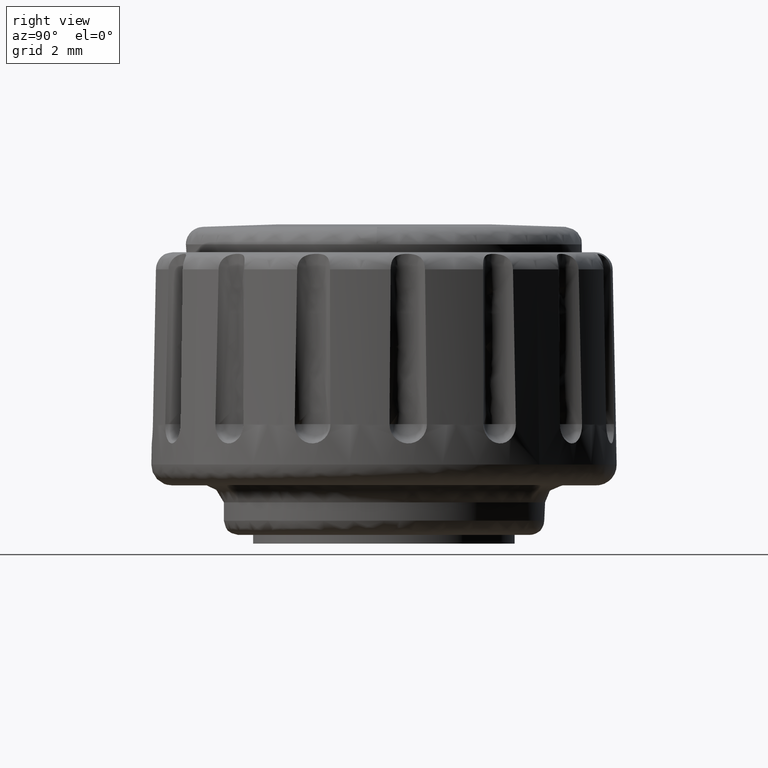
[diagram: clean part render]
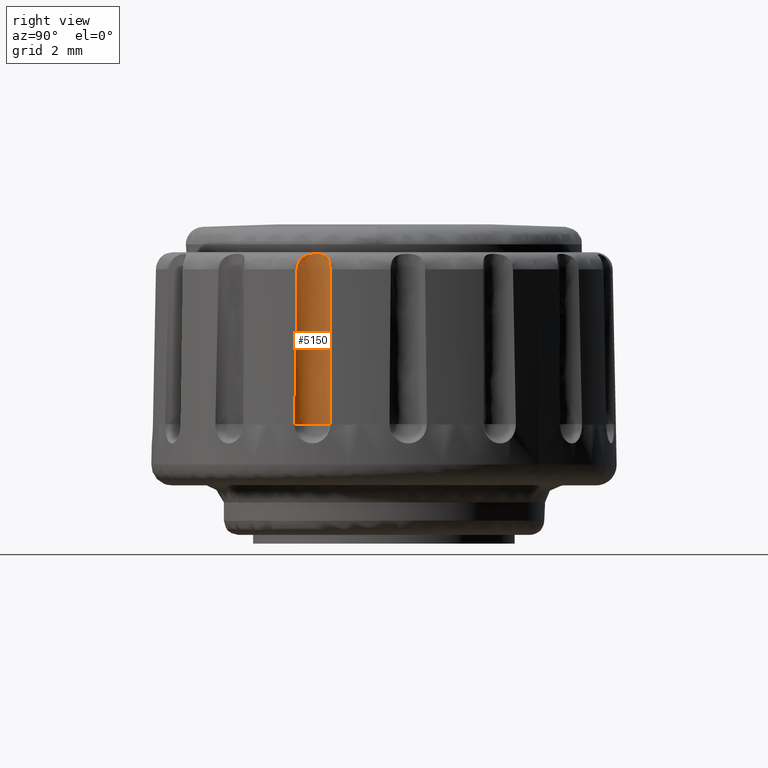
[diagram: same view with one face highlighted and labeled with its STEP entity id]
A machine part, right view. The second image highlights one B-rep face of the part: STEP entity #5150.
In plain terms, the highlighted face is a freeform B-spline surface patch.
Its self-contained STEP definition (entity closure, byte-faithful):
#2722=CARTESIAN_POINT('',(7.626552596149190,-1.855426200154325,9.412215999999900));
#2723=VERTEX_POINT('',#2722);
#2737=CARTESIAN_POINT('',(7.742464787925609,-1.836197763752780,4.099998000000050));
#2738=VERTEX_POINT('',#2737);
#2739=CARTESIAN_POINT('',(7.742464787925611,-1.836197763752782,4.099998000000050));
#2740=CARTESIAN_POINT('',(7.704670030861530,-1.839241740460635,5.870766696366895));
#2741=CARTESIAN_POINT('',(7.666117266082974,-1.845390425817147,7.641511528857082));
#2742=CARTESIAN_POINT('',(7.626552596149197,-1.855426200154308,9.412215999999900));
#2743=QUASI_UNIFORM_CURVE('',3,(#2739,#2740,#2741,#2742),.UNSPECIFIED.,.F.,.U.);
#2744=EDGE_CURVE('',#2738,#2723,#2743,.T.);
#2746=CARTESIAN_POINT('',(7.343075557607750,-3.065391422827160,4.099997999999999));
#2747=VERTEX_POINT('',#2746);
#2795=CARTESIAN_POINT('',(7.260602815946850,-2.981703814115975,9.412215999999900));
#2796=VERTEX_POINT('',#2795);
#2797=CARTESIAN_POINT('',(7.260602815946846,-2.981703814115973,9.412215999999900));
#2798=CARTESIAN_POINT('',(7.286712423502366,-3.013078452424546,7.641511708373157));
#2799=CARTESIAN_POINT('',(7.314288163533535,-3.040713594899742,5.870766568932622));
#2800=CARTESIAN_POINT('',(7.343075557607752,-3.065391422827168,4.099997999999999));
#2801=QUASI_UNIFORM_CURVE('',3,(#2797,#2798,#2799,#2800),.UNSPECIFIED.,.F.,.U.);
#2802=EDGE_CURVE('',#2796,#2747,#2801,.T.);
#4389=CARTESIAN_POINT('',(7.626552596149193,-1.855426200154326,9.412215999999900));
#4390=CARTESIAN_POINT('',(7.625620835263364,-1.855662545914371,9.453916978650060));
#4391=CARTESIAN_POINT('',(7.620001227960693,-1.857039705603392,9.494705356962383));
#4392=CARTESIAN_POINT('',(7.604780511011022,-1.861303102568037,9.554538196299596));
#4393=CARTESIAN_POINT('',(7.598517188276984,-1.863116782347265,9.574371121964864));
#4394=CARTESIAN_POINT('',(7.583838260503060,-1.867672393634866,9.612979769021203));
#4395=CARTESIAN_POINT('',(7.567126998855718,-1.873119478895888,9.650306229437662));
#4396=CARTESIAN_POINT('',(7.546584338713535,-1.880789526245558,9.685106089512372));
#4397=CARTESIAN_POINT('',(7.524198820595683,-1.889875805371366,9.718620688036364));
#4398=CARTESIAN_POINT('',(7.511982620812447,-1.895177879926893,9.734842281239375));
#4399=CARTESIAN_POINT('',(7.473702135162109,-1.913294274275865,9.780309983706944));
#4400=CARTESIAN_POINT('',(7.445919146811503,-1.928316286923864,9.806636376722523));
#4401=CARTESIAN_POINT('',(7.402283632115815,-1.956715342856565,9.840786535082382));
#4402=CARTESIAN_POINT('',(7.387441291489088,-1.967159914050338,9.851235461969329));
#4403=CARTESIAN_POINT('',(7.358206936620483,-1.989567437706576,9.869958542599807));
#4404=CARTESIAN_POINT('',(7.343708814545589,-2.001595843492402,9.878318822856285));
#4405=CARTESIAN_POINT('',(7.300901764493307,-2.040263328759806,9.900807544248766));
#4406=CARTESIAN_POINT('',(7.273181996675119,-2.069719039185449,9.912355600197698));
#4407=CARTESIAN_POINT('',(7.235794718939620,-2.117298453451055,9.925299691225185));
#4408=CARTESIAN_POINT('',(7.223942680426749,-2.133790738097808,9.928924707190696));
#4409=CARTESIAN_POINT('',(7.201546528989185,-2.168050948289898,9.935012990686719));
#4410=CARTESIAN_POINT('',(7.190956595190020,-2.185913023295222,9.937483331904756));
#4411=CARTESIAN_POINT('',(7.161787938672625,-2.240516377608079,9.943261753614440));
#4412=CARTESIAN_POINT('',(7.145675830924058,-2.278365561943771,9.945034975578089));
#4413=CARTESIAN_POINT('',(7.126529788318251,-2.337299566570263,9.945033646851439));
#4414=CARTESIAN_POINT('',(7.120966683079619,-2.357415220940403,9.944571324500885));
#4415=CARTESIAN_POINT('',(7.111710819579084,-2.397815369306824,9.942692276019681));
#4416=CARTESIAN_POINT('',(7.108016379874477,-2.418053900422498,9.941283351151192));
#4417=CARTESIAN_POINT('',(7.099632010100171,-2.478860311125598,9.935529924069957));
#4418=CARTESIAN_POINT('',(7.097626275176259,-2.519523906056831,9.929712001450543));
#4419=CARTESIAN_POINT('',(7.100680474839721,-2.600876067593521,9.912308955185335));
#4420=CARTESIAN_POINT('',(7.105729652825915,-2.640266467787070,9.900945160164982));
#4421=CARTESIAN_POINT('',(7.117492086836324,-2.696339824587368,9.878688632862499));
#4422=CARTESIAN_POINT('',(7.122114471081282,-2.714566939353395,9.870385579118485));
#4423=CARTESIAN_POINT('',(7.132583856724989,-2.750001139368933,9.851679695909551));
#4424=CARTESIAN_POINT('',(7.138461701442597,-2.767255014768903,9.841217255451333));
#4425=CARTESIAN_POINT('',(7.156955615285195,-2.815738884400379,9.807307234463064));
#4426=CARTESIAN_POINT('',(7.170577841924834,-2.844288789906472,9.781090340372815));
#4427=CARTESIAN_POINT('',(7.190964617569385,-2.881655172570360,9.735580212510055));
#4428=CARTESIAN_POINT('',(7.197730890672610,-2.893146488760872,9.719398916058827));
#4429=CARTESIAN_POINT('',(7.210527531893706,-2.913736321779032,9.685907587720941));
#4430=CARTESIAN_POINT('',(7.216611320398571,-2.922934058585719,9.668484688392210));
#4431=CARTESIAN_POINT('',(7.233543361261990,-2.947506195400254,9.614197892450916));
#4432=CARTESIAN_POINT('',(7.243057937776749,-2.959869962591664,9.575022528015019));
#4433=CARTESIAN_POINT('',(7.256186076267357,-2.976469083410297,9.495266763563878));
#4434=CARTESIAN_POINT('',(7.259987144221982,-2.980963991518357,9.453970005060404));
#4435=CARTESIAN_POINT('',(7.260602815946850,-2.981703814115975,9.412215999999900));
#4436=B_SPLINE_CURVE_WITH_KNOTS('',3,(#4389,#4390,#4391,#4392,#4393,#4394,#4395,#4396,#4397,#4398,#4399,#4400,#4401,#4402,#4403,#4404,#4405,#4406,#4407,#4408,#4409,#4410,#4411,#4412,#4413,#4414,#4415,#4416,#4417,#4418,#4419,#4420,#4421,#4422,#4423,#4424,#4425,#4426,#4427,#4428,#4429,#4430,#4431,#4432,#4433,#4434,#4435),.UNSPECIFIED.,.F.,.U.,(4,2,2,1,2,2,2,2,2,2,2,2,2,2,2,2,2,2,2,2,2,2,2,4),(0.0,0.062499999999998,0.093749999999998,0.124999999999998,0.156249999999998,0.187499999999999,0.249999999999998,0.281249999999997,0.312499999999997,0.374999999999998,0.406249999999997,0.437499999999997,0.499999999999997,0.531249999999996,0.562499999999996,0.624999999999996,0.687499999999996,0.718749999999997,0.749999999999997,0.812499999999997,0.843749999999998,0.874999999999998,0.937499999999999,1.0),.UNSPECIFIED.);
#4437=EDGE_CURVE('',#2723,#2796,#4436,.T.);
#4585=CARTESIAN_POINT('',(7.742464787925610,-1.836197763752782,4.099998000000050));
#4586=CARTESIAN_POINT('',(7.277170457506203,-1.873672408759534,4.099998000000050));
#4587=CARTESIAN_POINT('',(7.132921019044102,-2.317626530761118,4.099998000000050));
#4588=CARTESIAN_POINT('',(6.988671580582002,-2.761580652762700,4.099998000000050));
#4589=CARTESIAN_POINT('',(7.343075557607750,-3.065391422827160,4.099997999999999));
#4597=(BOUNDED_CURVE()B_SPLINE_CURVE(2,(#4585,#4586,#4587,#4588,#4589),.UNSPECIFIED.,.F.,.U.)B_SPLINE_CURVE_WITH_KNOTS((3,2,3),(0.0,0.500000000000000,1.0),.UNSPECIFIED.)CURVE()GEOMETRIC_REPRESENTATION_ITEM()RATIONAL_B_SPLINE_CURVE((1.0,0.831976603905545,1.0,0.831976603905545,1.0))REPRESENTATION_ITEM(''));
#4598=EDGE_CURVE('',#2738,#2747,#4597,.T.);
#5126=CARTESIAN_POINT('',(7.748555786354141,-1.835733937000906,10.091159992344210));
#5127=CARTESIAN_POINT('',(7.748555786354141,-1.835733937000906,3.950218950191394));
#5128=CARTESIAN_POINT('',(7.268693135288863,-1.870170007918133,10.091159992344210));
#5129=CARTESIAN_POINT('',(7.268693135288863,-1.870170007918133,3.950218950191394));
#5130=CARTESIAN_POINT('',(7.128874582737019,-2.330501170484736,10.091159992344210));
#5131=CARTESIAN_POINT('',(7.128874582737019,-2.330501170484736,3.950218950191394));
#5132=CARTESIAN_POINT('',(6.989056030185176,-2.790832333051339,10.091159992344210));
#5133=CARTESIAN_POINT('',(6.989056030185176,-2.790832333051339,3.950218950191394));
#5134=CARTESIAN_POINT('',(7.368705705277661,-3.086332131815708,10.091159992344210));
#5135=CARTESIAN_POINT('',(7.368705705277661,-3.086332131815708,3.950218950191394));
#5143=(BOUNDED_SURFACE()B_SPLINE_SURFACE(1,2,((#5126,#5128,#5130,#5132,#5134),(#5127,#5129,#5131,#5133,#5135)),.UNSPECIFIED.,.F.,.F.,.U.)B_SPLINE_SURFACE_WITH_KNOTS((2,2),(3,2,3),(0.0,6.140941042152816),(0.0,1.0,2.0),.UNSPECIFIED.)GEOMETRIC_REPRESENTATION_ITEM()RATIONAL_B_SPLINE_SURFACE(((1.0,0.824126188622016,1.0,0.824126188622016,1.0),(1.0,0.824126188622016,1.0,0.824126188622016,1.0)))REPRESENTATION_ITEM('')SURFACE());
#5144=ORIENTED_EDGE('',*,*,#2802,.T.);
#5145=ORIENTED_EDGE('',*,*,#4598,.F.);
#5146=ORIENTED_EDGE('',*,*,#2744,.T.);
#5147=ORIENTED_EDGE('',*,*,#4437,.T.);
#5148=EDGE_LOOP('',(#5144,#5145,#5146,#5147));
#5149=FACE_OUTER_BOUND('',#5148,.T.);
#5150=ADVANCED_FACE('',(#5149),#5143,.F.);